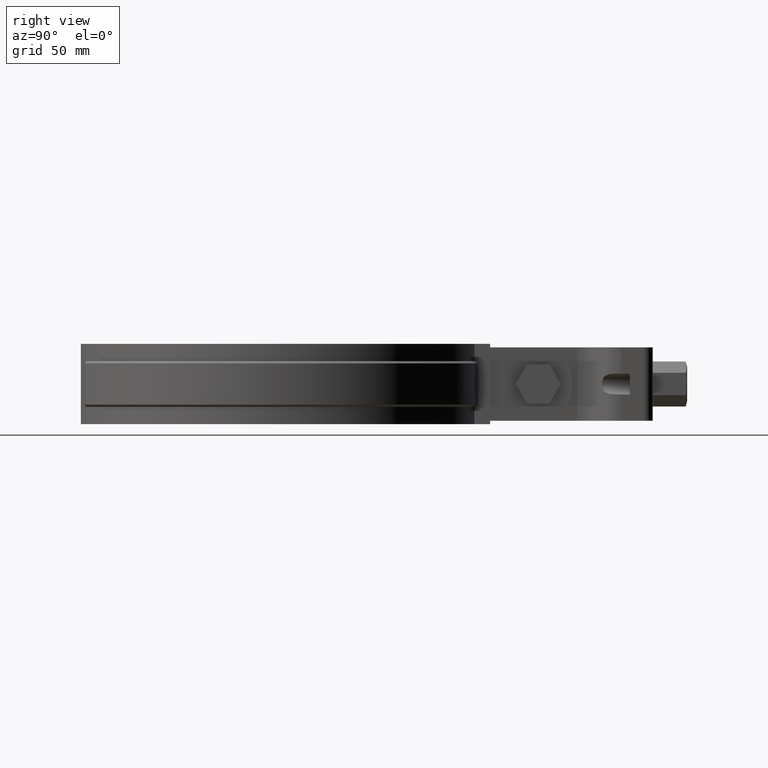
[diagram: clean part render]
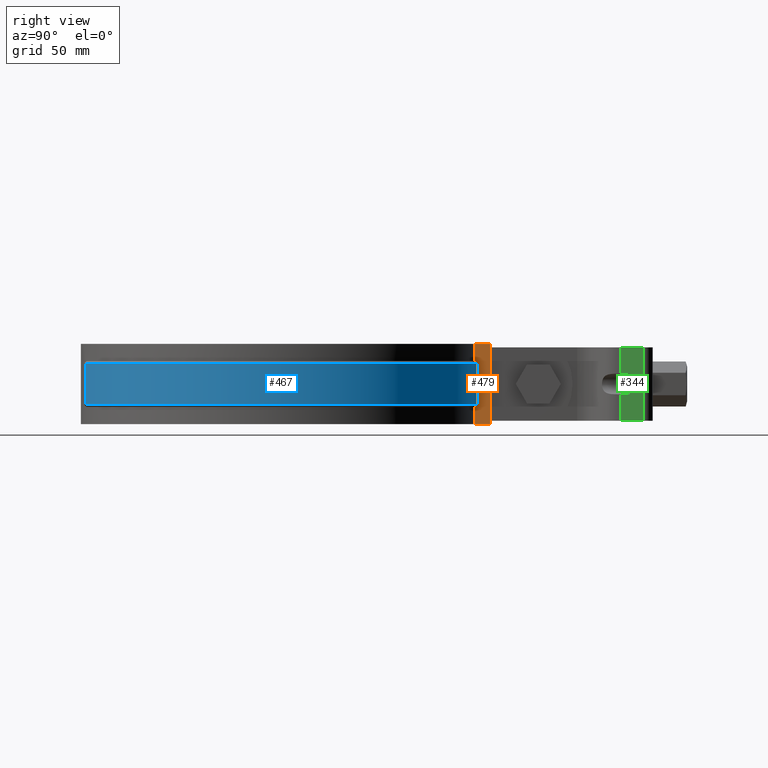
[diagram: same view with three faces highlighted in distinct colors, each labeled with its STEP entity id]
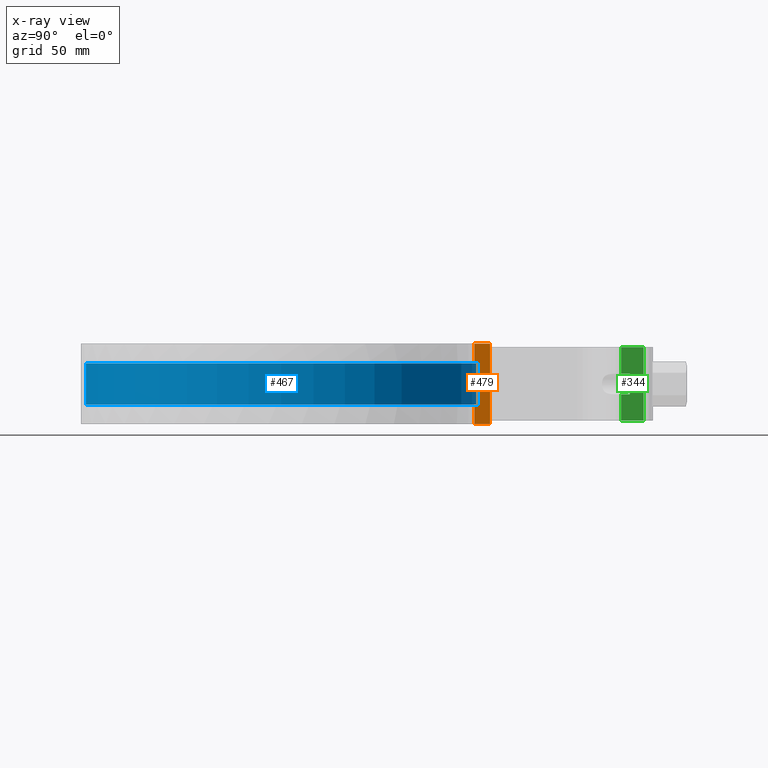
[diagram: x-ray of the same camera — body ghosted, the three highlighted faces saturated]
A machine part, right view with three faces highlighted in distinct colors.
The next image is the same camera in x-ray (body ghosted, the three faces saturated) — at least one of them is partly hidden behind the body in this view.
Their STEP definitions:

[orange] entity #479 — the highlighted planar face has unit normal (1, -0, 0).
#479 = ADVANCED_FACE( '', ( #856 ), #857, .T. );
#856 = FACE_OUTER_BOUND( '', #1991, .T. );
#857 = PLANE( '', #1992 );
#1991 = EDGE_LOOP( '', ( #4845, #4846, #4847, #4848, #4849, #4850, #4851, #4852, #4853, #4854 ) );
#1992 = AXIS2_PLACEMENT_3D( '', #4855, #4856, #4857 );
#4845 = ORIENTED_EDGE( '', *, *, #5397, .F. );
#4846 = ORIENTED_EDGE( '', *, *, #5417, .T. );
#4847 = ORIENTED_EDGE( '', *, *, #5392, .T. );
#4848 = ORIENTED_EDGE( '', *, *, #5346, .F. );
#4849 = ORIENTED_EDGE( '', *, *, #5414, .T. );
#4850 = ORIENTED_EDGE( '', *, *, #5341, .T. );
#4851 = ORIENTED_EDGE( '', *, *, #5407, .F. );
#4852 = ORIENTED_EDGE( '', *, *, #5352, .F. );
#4853 = ORIENTED_EDGE( '', *, *, #5389, .F. );
#4854 = ORIENTED_EDGE( '', *, *, #5418, .T. );
#4855 = CARTESIAN_POINT( '', ( 8.40000000000000, 85.5887843119646, -33.5000000000000 ) );
#4856 = DIRECTION( '', ( 1.00000000000000, -6.42490176287706E-017, 0.000000000000000 ) );
#4857 = DIRECTION( '', ( -6.42490176287706E-017, -1.00000000000000, 0.000000000000000 ) );
#5341 = EDGE_CURVE( '', #6073, #6070, #6074, .T. );
#5346 = EDGE_CURVE( '', #6080, #6081, #6082, .T. );
#5352 = EDGE_CURVE( '', #6091, #6093, #6094, .T. );
#5389 = EDGE_CURVE( '', #6154, #6091, #6156, .T. );
#5392 = EDGE_CURVE( '', #6161, #6081, #6162, .T. );
#5397 = EDGE_CURVE( '', #6169, #6170, #6171, .T. );
#5407 = EDGE_CURVE( '', #6093, #6070, #6183, .T. );
#5414 = EDGE_CURVE( '', #6080, #6073, #6194, .T. );
#5417 = EDGE_CURVE( '', #6169, #6161, #6197, .T. );
#5418 = EDGE_CURVE( '', #6154, #6170, #6198, .T. );
#6070 = VERTEX_POINT( '', #9262 );
#6073 = VERTEX_POINT( '', #9266 );
#6074 = LINE( '', #9267, #9268 );
#6080 = VERTEX_POINT( '', #9278 );
#6081 = VERTEX_POINT( '', #9279 );
#6082 = LINE( '', #9280, #9281 );
#6091 = VERTEX_POINT( '', #9291 );
#6093 = VERTEX_POINT( '', #9293 );
#6094 = LINE( '', #9294, #9295 );
#6154 = VERTEX_POINT( '', #9379 );
#6156 = LINE( '', #9381, #9382 );
#6161 = VERTEX_POINT( '', #9388 );
#6162 = LINE( '', #9389, #9390 );
#6169 = VERTEX_POINT( '', #9400 );
#6170 = VERTEX_POINT( '', #9401 );
#6171 = LINE( '', #9402, #9403 );
#6183 = LINE( '', #9420, #9421 );
#6194 = LINE( '', #9432, #9433 );
#6197 = B_SPLINE_CURVE_WITH_KNOTS( '', 3, ( #9438, #9439, #9440, #9441 ), .UNSPECIFIED., .F., .F., ( 4, 4 ), ( 3.92523114670944E-017, 0.00141753669228156 ), .UNSPECIFIED. );
#6198 = B_SPLINE_CURVE_WITH_KNOTS( '', 3, ( #9442, #9443, #9444, #9445 ), .UNSPECIFIED., .F., .F., ( 4, 4 ), ( 0.000000000000000, 0.00141753669228152 ), .UNSPECIFIED. );
#9262 = CARTESIAN_POINT( '', ( 8.40000000000000, 92.5000000000000, 1.50000000000000 ) );
#9266 = CARTESIAN_POINT( '', ( 8.40000000000000, 92.5000000000000, -33.5000000000000 ) );
#9267 = CARTESIAN_POINT( '', ( 8.40000000000000, 92.5000000000000, -33.5000000000000 ) );
#9268 = VECTOR( '', #9991, 1000.00000000000 );
#9278 = CARTESIAN_POINT( '', ( 8.40000000000003, 85.5887843119646, -33.5000000000000 ) );
#9279 = CARTESIAN_POINT( '', ( 8.40000000000003, 85.5887843119646, -26.0000000000000 ) );
#9280 = CARTESIAN_POINT( '', ( 8.40000000000003, 85.5887843119646, -33.5000000000000 ) );
#9281 = VECTOR( '', #9996, 1000.00000000000 );
#9291 = CARTESIAN_POINT( '', ( 8.40000000000002, 85.5887843119646, -6.00000000000000 ) );
#9293 = CARTESIAN_POINT( '', ( 8.40000000000003, 85.5887843119646, 1.50000000000000 ) );
#9294 = CARTESIAN_POINT( '', ( 8.40000000000003, 85.5887843119646, -33.5000000000000 ) );
#9295 = VECTOR( '', #10010, 1000.00000000000 );
#9379 = CARTESIAN_POINT( '', ( 8.40000000000001, 86.0911726020735, -6.00000000000000 ) );
#9381 = CARTESIAN_POINT( '', ( 8.40000000000001, 87.0958667216763, -6.00000000000000 ) );
#9382 = VECTOR( '', #10077, 1000.00000000000 );
#9388 = CARTESIAN_POINT( '', ( 8.40000000000001, 86.0911726020735, -26.0000000000000 ) );
#9389 = CARTESIAN_POINT( '', ( 8.40000000000001, 87.0958667216763, -26.0000000000000 ) );
#9390 = VECTOR( '', #10082, 1000.00000000000 );
#9400 = CARTESIAN_POINT( '', ( 8.40000000000004, 87.0958667216763, -25.0000000000000 ) );
#9401 = CARTESIAN_POINT( '', ( 8.40000000000004, 87.0958667216763, -7.00000000000000 ) );
#9402 = CARTESIAN_POINT( '', ( 8.40000000000004, 87.0958667216763, -26.0000000000000 ) );
#9403 = VECTOR( '', #10089, 1000.00000000000 );
#9420 = CARTESIAN_POINT( '', ( 8.40000000000000, 85.5887843119646, 1.50000000000000 ) );
#9421 = VECTOR( '', #10107, 1000.00000000000 );
#9432 = CARTESIAN_POINT( '', ( 8.40000000000000, 85.5887843119646, -33.5000000000000 ) );
#9433 = VECTOR( '', #10126, 1000.00000000000 );
#9438 = CARTESIAN_POINT( '', ( 8.40000000000005, 87.0958667216763, -25.0000000000000 ) );
#9439 = CARTESIAN_POINT( '', ( 8.40000000000005, 86.7609776437573, -25.3333423371083 ) );
#9440 = CARTESIAN_POINT( '', ( 8.40000000000000, 86.4260797077377, -25.6666757752670 ) );
#9441 = CARTESIAN_POINT( '', ( 8.40000000000000, 86.0911726020735, -26.0000000000000 ) );
#9442 = CARTESIAN_POINT( '', ( 8.40000000000001, 86.0911726020735, -6.00000000000000 ) );
#9443 = CARTESIAN_POINT( '', ( 8.40000000000001, 86.4260797077377, -6.33332422473300 ) );
#9444 = CARTESIAN_POINT( '', ( 8.40000000000000, 86.7609776437573, -6.66665766289166 ) );
#9445 = CARTESIAN_POINT( '', ( 8.40000000000000, 87.0958667216763, -6.99999999999999 ) );
#9991 = DIRECTION( '', ( 0.000000000000000, 0.000000000000000, 1.00000000000000 ) );
#9996 = DIRECTION( '', ( 0.000000000000000, 0.000000000000000, 1.00000000000000 ) );
#10010 = DIRECTION( '', ( 0.000000000000000, 0.000000000000000, 1.00000000000000 ) );
#10077 = DIRECTION( '', ( -5.55111512312578E-017, -1.00000000000000, 0.000000000000000 ) );
#10082 = DIRECTION( '', ( -5.55111512312578E-017, -1.00000000000000, 0.000000000000000 ) );
#10089 = DIRECTION( '', ( 0.000000000000000, 0.000000000000000, 1.00000000000000 ) );
#10107 = DIRECTION( '', ( 6.42490176287706E-017, 1.00000000000000, 0.000000000000000 ) );
#10126 = DIRECTION( '', ( 6.42490176287706E-017, 1.00000000000000, 0.000000000000000 ) );

[blue] entity #467 — the highlighted cylindrical surface (partial cylindrical patch) has radius 87.5 mm, axis along (0, 0, -1).
#467 = ADVANCED_FACE( '', ( #832 ), #833, .T. );
#832 = FACE_OUTER_BOUND( '', #1967, .T. );
#833 = CYLINDRICAL_SURFACE( '', #1968, 87.5000000000000 );
#1967 = EDGE_LOOP( '', ( #4747, #4748, #4749, #4750 ) );
#1968 = AXIS2_PLACEMENT_3D( '', #4751, #4752, #4753 );
#4747 = ORIENTED_EDGE( '', *, *, #5397, .T. );
#4748 = ORIENTED_EDGE( '', *, *, #5398, .T. );
#4749 = ORIENTED_EDGE( '', *, *, #5399, .F. );
#4750 = ORIENTED_EDGE( '', *, *, #5400, .T. );
#4751 = CARTESIAN_POINT( '', ( 3.46944695195361E-015, 1.38777878078145E-014, -26.0000000000000 ) );
#4752 = DIRECTION( '', ( 0.000000000000000, 0.000000000000000, -1.00000000000000 ) );
#4753 = DIRECTION( '', ( 0.284686447455866, -0.958620689655173, 0.000000000000000 ) );
#5397 = EDGE_CURVE( '', #6169, #6170, #6171, .T. );
#5398 = EDGE_CURVE( '', #6170, #6172, #6173, .F. );
#5399 = EDGE_CURVE( '', #6174, #6172, #6175, .T. );
#5400 = EDGE_CURVE( '', #6174, #6169, #6176, .T. );
#6169 = VERTEX_POINT( '', #9400 );
#6170 = VERTEX_POINT( '', #9401 );
#6171 = LINE( '', #9402, #9403 );
#6172 = VERTEX_POINT( '', #9404 );
#6173 = CIRCLE( '', #9405, 87.5000000000000 );
#6174 = VERTEX_POINT( '', #9406 );
#6175 = LINE( '', #9407, #9408 );
#6176 = CIRCLE( '', #9409, 87.5000000000000 );
#9400 = CARTESIAN_POINT( '', ( 8.40000000000004, 87.0958667216763, -25.0000000000000 ) );
#9401 = CARTESIAN_POINT( '', ( 8.40000000000004, 87.0958667216763, -7.00000000000000 ) );
#9402 = CARTESIAN_POINT( '', ( 8.40000000000004, 87.0958667216763, -26.0000000000000 ) );
#9403 = VECTOR( '', #10089, 1000.00000000000 );
#9404 = CARTESIAN_POINT( '', ( 24.9100641523883, -83.8793103448276, -7.00000000000000 ) );
#9405 = AXIS2_PLACEMENT_3D( '', #10090, #10091, #10092 );
#9406 = CARTESIAN_POINT( '', ( 24.9100641523883, -83.8793103448276, -25.0000000000000 ) );
#9407 = CARTESIAN_POINT( '', ( 24.9100641523883, -83.8793103448276, -26.0000000000000 ) );
#9408 = VECTOR( '', #10093, 1000.00000000000 );
#9409 = AXIS2_PLACEMENT_3D( '', #10094, #10095, #10096 );
#10089 = DIRECTION( '', ( 0.000000000000000, 0.000000000000000, 1.00000000000000 ) );
#10090 = CARTESIAN_POINT( '', ( 3.46944695195361E-015, 1.38777878078145E-014, -7.00000000000000 ) );
#10091 = DIRECTION( '', ( 0.000000000000000, 0.000000000000000, 1.00000000000000 ) );
#10092 = DIRECTION( '', ( 1.00000000000000, 0.000000000000000, 0.000000000000000 ) );
#10093 = DIRECTION( '', ( 0.000000000000000, 0.000000000000000, 1.00000000000000 ) );
#10094 = CARTESIAN_POINT( '', ( 3.46944695195361E-015, 1.38777878078145E-014, -25.0000000000000 ) );
#10095 = DIRECTION( '', ( 0.000000000000000, 0.000000000000000, 1.00000000000000 ) );
#10096 = DIRECTION( '', ( 1.00000000000000, 0.000000000000000, 0.000000000000000 ) );

[green] entity #344 — the highlighted planar face has unit normal (1, 0, 0).
#344 = ADVANCED_FACE( '', ( #558 ), #559, .T. );
#558 = FACE_OUTER_BOUND( '', #1320, .T. );
#559 = PLANE( '', #1321 );
#1320 = EDGE_LOOP( '', ( #3003, #3004, #3005, #3006, #3007, #3008, #3009, #3010 ) );
#1321 = AXIS2_PLACEMENT_3D( '', #3011, #3012, #3013 );
#3003 = ORIENTED_EDGE( '', *, *, #5046, .F. );
#3004 = ORIENTED_EDGE( '', *, *, #5047, .T. );
#3005 = ORIENTED_EDGE( '', *, *, #5048, .F. );
#3006 = ORIENTED_EDGE( '', *, *, #5049, .F. );
#3007 = ORIENTED_EDGE( '', *, *, #5050, .F. );
#3008 = ORIENTED_EDGE( '', *, *, #5051, .T. );
#3009 = ORIENTED_EDGE( '', *, *, #5043, .T. );
#3010 = ORIENTED_EDGE( '', *, *, #5052, .F. );
#3011 = CARTESIAN_POINT( '', ( 17.4999999999997, 149.604015965514, -31.9999999999856 ) );
#3012 = DIRECTION( '', ( 1.00000000000000, 2.34062543713590E-016, 9.11521279052745E-016 ) );
#3013 = DIRECTION( '', ( 2.34062543713430E-016, -1.00000000000000, 1.75137682134619E-013 ) );
#5043 = EDGE_CURVE( '', #5569, #5566, #5570, .T. );
#5046 = EDGE_CURVE( '', #5574, #5575, #5576, .T. );
#5047 = EDGE_CURVE( '', #5574, #5577, #5578, .T. );
#5048 = EDGE_CURVE( '', #5579, #5577, #5580, .T. );
#5049 = EDGE_CURVE( '', #5581, #5579, #5582, .T. );
#5050 = EDGE_CURVE( '', #5583, #5581, #5584, .T. );
#5051 = EDGE_CURVE( '', #5583, #5569, #5585, .T. );
#5052 = EDGE_CURVE( '', #5575, #5566, #5586, .T. );
#5566 = VERTEX_POINT( '', #7386 );
#5569 = VERTEX_POINT( '', #7389 );
#5570 = LINE( '', #7390, #7391 );
#5574 = VERTEX_POINT( '', #7396 );
#5575 = VERTEX_POINT( '', #7397 );
#5576 = LINE( '', #7398, #7399 );
#5577 = VERTEX_POINT( '', #7400 );
#5578 = LINE( '', #7401, #7402 );
#5579 = VERTEX_POINT( '', #7403 );
#5580 = LINE( '', #7404, #7405 );
#5581 = VERTEX_POINT( '', #7406 );
#5582 = LINE( '', #7407, #7408 );
#5583 = VERTEX_POINT( '', #7409 );
#5584 = LINE( '', #7410, #7411 );
#5585 = LINE( '', #7412, #7413 );
#5586 = LINE( '', #7414, #7415 );
#7386 = CARTESIAN_POINT( '', ( 17.4999999999996, 159.398345459997, -1.29063426612635E-012 ) );
#7389 = CARTESIAN_POINT( '', ( 17.4999999999997, 159.398345459992, -31.9999999999873 ) );
#7390 = CARTESIAN_POINT( '', ( 17.4999999999997, 159.398345459992, -31.9999999999873 ) );
#7391 = VECTOR( '', #9570, 999.999999999867 );
#7396 = CARTESIAN_POINT( '', ( 17.4999999999996, 149.604015965517, -11.4999999999946 ) );
#7397 = CARTESIAN_POINT( '', ( 17.4999999999996, 149.604015965519, 4.23272528138212E-013 ) );
#7398 = CARTESIAN_POINT( '', ( 17.4999999999997, 149.604015965514, -31.9999999999856 ) );
#7399 = VECTOR( '', #9575, 999.999999999867 );
#7400 = CARTESIAN_POINT( '', ( 17.4999999999997, 153.398345459998, -11.4999999999952 ) );
#7401 = CARTESIAN_POINT( '', ( 17.4999999999997, 138.398345460005, -11.4999999999926 ) );
#7402 = VECTOR( '', #9576, 999.999999999848 );
#7403 = CARTESIAN_POINT( '', ( 17.4999999999997, 153.398345459997, -20.4999999999913 ) );
#7404 = CARTESIAN_POINT( '', ( 17.4999999999997, 153.398345459995, -31.9999999999863 ) );
#7405 = VECTOR( '', #9577, 999.999999999867 );
#7406 = CARTESIAN_POINT( '', ( 17.4999999999997, 149.604015965516, -20.4999999999906 ) );
#7407 = CARTESIAN_POINT( '', ( 17.4999999999997, 138.398345460003, -20.4999999999887 ) );
#7408 = VECTOR( '', #9578, 999.999999999848 );
#7409 = CARTESIAN_POINT( '', ( 17.4999999999997, 149.604015965514, -31.9999999999856 ) );
#7410 = CARTESIAN_POINT( '', ( 17.4999999999997, 149.604015965514, -31.9999999999856 ) );
#7411 = VECTOR( '', #9579, 999.999999999867 );
#7412 = CARTESIAN_POINT( '', ( 17.4999999999997, 149.604015965514, -31.9999999999856 ) );
#7413 = VECTOR( '', #9580, 999.999999999848 );
#7414 = CARTESIAN_POINT( '', ( 17.4999999999996, 149.604015965519, 4.23272528138212E-013 ) );
#7415 = VECTOR( '', #9581, 999.999999999848 );
#9570 = DIRECTION( '', ( -9.11521279052786E-016, 1.75137682134619E-013, 1.00000000000000 ) );
#9575 = DIRECTION( '', ( -9.11521279052786E-016, 1.75137682134619E-013, 1.00000000000000 ) );
#9576 = DIRECTION( '', ( -3.03451482752472E-016, 1.00000000000000, -1.75321373087693E-013 ) );
#9577 = DIRECTION( '', ( -9.11521279052786E-016, 1.75321373087693E-013, 1.00000000000000 ) );
#9578 = DIRECTION( '', ( -3.03451482752472E-016, 1.00000000000000, -1.75321373087693E-013 ) );
#9579 = DIRECTION( '', ( -9.11521279052786E-016, 1.75137682134619E-013, 1.00000000000000 ) );
#9580 = DIRECTION( '', ( -2.34062543713370E-016, 1.00000000000000, -1.75137682134619E-013 ) );
#9581 = DIRECTION( '', ( -2.34062543713370E-016, 1.00000000000000, -1.75137682134619E-013 ) );